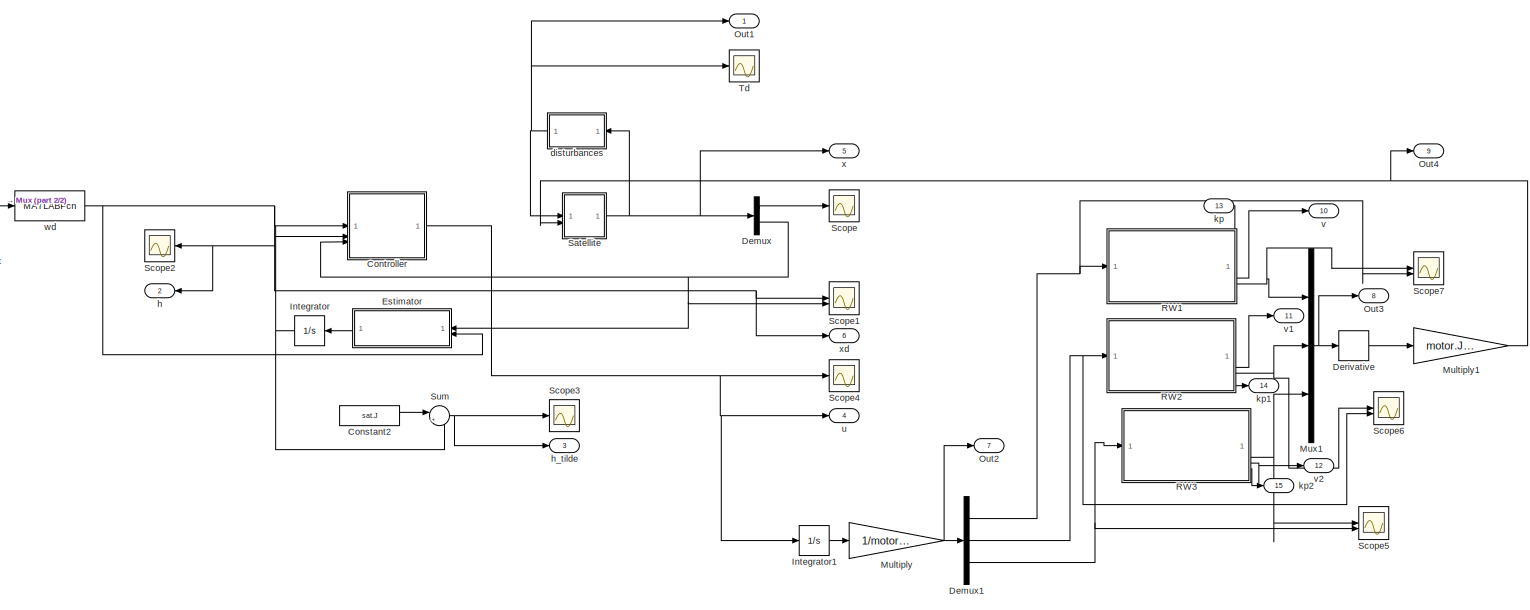
[diagram: root canvas - part 1/2, most of the canvas]
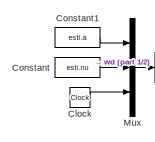
[diagram: root canvas - part 2/2, middle left region]
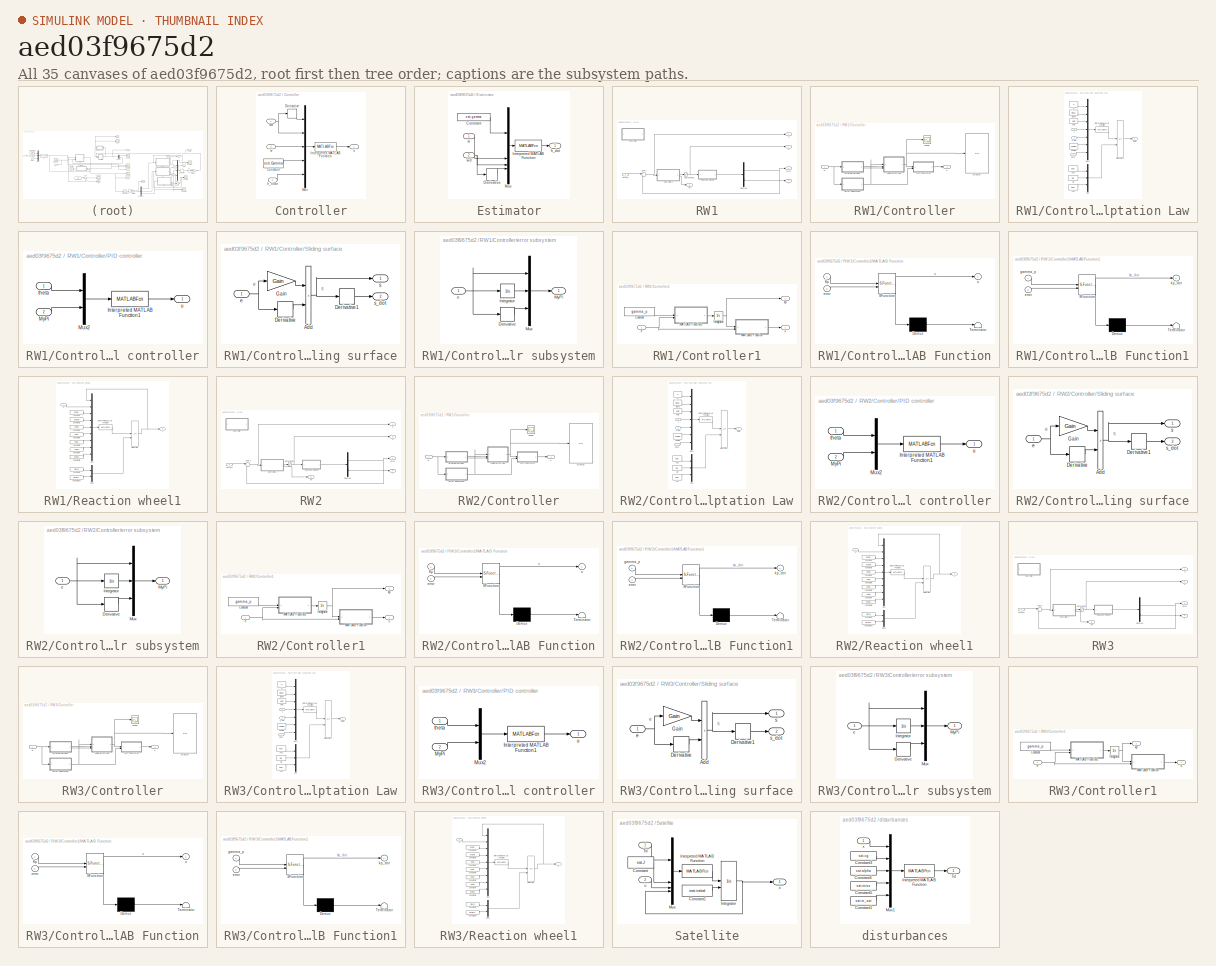
[diagram: thumbnail index - all 35 canvases of the model, root first then tree order]
MODEL slx_aed03f9675d2
KIND model
CONFIG AbsTol = auto
CONFIG EnableMultiTasking = off
CONFIG FixedStep = 1E-4
CONFIG MaxStep = auto
CONFIG MinStep = auto
CONFIG RelTol = 1e-3
CONFIG SampleTimeConstraint = Unconstrained
CONFIG SolverName = FixedStepAuto
CONFIG StartTime = 0.0
CONFIG StopTime = 1500
BLOCK [Clock] Clock
BLOCK [Constant] Constant
  Value = esti.nu
BLOCK [Constant] Constant1
  Value = esti.a
BLOCK [Constant] Constant2
  Value = sat.J
BLOCK [SubSystem] Controller
BLOCK [Constant] Controller/Constant
  Value = esti.Gamma
BLOCK [Derivative] Controller/Derivative
BLOCK [MATLABFcn] Controller/Interpreted MATLAB Function
  MATLABFcn = controller
BLOCK [Mux] Controller/Mux
  DisplayOption = bar
  Inputs = 5
BLOCK [Inport] Controller/h_tilde
  Port = 2
BLOCK [Outport] Controller/u
BLOCK [Inport] Controller/w
  Port = 3
BLOCK [Inport] Controller/wd
BLOCK [Demux] Demux
  Outputs = 2
BLOCK [Demux] Demux1
  Outputs = 3
BLOCK [Derivative] Derivative
BLOCK [SubSystem] Estimator
  NameLocation = top
BLOCK [Constant] Estimator/Constant
  Value = esti.gamma
  VectorParams1D = off
BLOCK [Derivative] Estimator/Derivative
BLOCK [MATLABFcn] Estimator/Interpreted MATLAB Function
  MATLABFcn = estimator
BLOCK [Mux] Estimator/Mux
  DisplayOption = bar
BLOCK [Outport] Estimator/h_dot
BLOCK [Inport] Estimator/w
BLOCK [Inport] Estimator/wd
  Port = 2
BLOCK [Integrator] Integrator
  NameLocation = top
BLOCK [Integrator] Integrator1
BLOCK [Gain] Multiply
  Gain = 1/motor.Jrw
BLOCK [Gain] Multiply1
  Gain = motor.Jrw
BLOCK [Mux] Mux
  DisplayOption = bar
  Inputs = 3
BLOCK [Mux] Mux1
  DisplayOption = bar
  Inputs = 3
BLOCK [Outport] Out1
BLOCK [Outport] Out2
  Port = 7
BLOCK [Outport] Out3
  Port = 8
BLOCK [Outport] Out4
  Port = 9
BLOCK [SubSystem] RW1
  PortSchema = {"entries":[{"content":{"sides":[{"content":{"connectorIds":["In1"]},"type":"ConnectorPlacement.EquallySpacedRectSide","uuid":"676f5149-fe3d-4701-b2d2-e4428c1af590"},{"content":{"connectorIds":["Out1","Out2","Out3","Out4"],"side":"RIGHT"},"type":"ConnectorPlacement.EquallySpacedRectSide","uuid":"0b9cb26b-9812-4b00-bfdf-ae8b5656d0ce"},{"content":{"connectorIds":["Out5"],"side":"TOP"},"type":"Connec...<+267ch>
BLOCK [SubSystem] RW1/Controller
  Commented = on
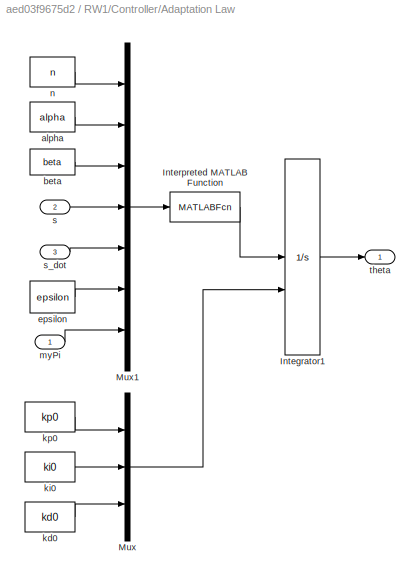
BLOCK [SubSystem] RW1/Controller/Adaptation Law
BLOCK [Integrator] RW1/Controller/Adaptation Law/Integrator1
  InitialCondition = [1.460477259865257e-04,6.548069875818259e-05,0]
  InitialConditionSource = external
BLOCK [MATLABFcn] RW1/Controller/Adaptation Law/Interpreted MATLAB Function
  MATLABFcn = adaptationLaw
BLOCK [Mux] RW1/Controller/Adaptation Law/Mux
  DisplayOption = bar
  Inputs = 3
BLOCK [Mux] RW1/Controller/Adaptation Law/Mux1
  DisplayOption = bar
  Inputs = 7
BLOCK [Constant] RW1/Controller/Adaptation Law/alpha
  Value = alpha
BLOCK [Constant] RW1/Controller/Adaptation Law/beta
  Value = beta
BLOCK [Constant] RW1/Controller/Adaptation Law/epsilon
  Value = epsilon
BLOCK [Constant] RW1/Controller/Adaptation Law/kd0
  Value = kd0
BLOCK [Constant] RW1/Controller/Adaptation Law/ki0
  Value = ki0
BLOCK [Constant] RW1/Controller/Adaptation Law/kp0
  Value = kp0
BLOCK [Inport] RW1/Controller/Adaptation Law/myPi
BLOCK [Constant] RW1/Controller/Adaptation Law/n
  Value = n
BLOCK [Inport] RW1/Controller/Adaptation Law/s
  Port = 2
BLOCK [Inport] RW1/Controller/Adaptation Law/s_dot
  Port = 3
BLOCK [Outport] RW1/Controller/Adaptation Law/theta
BLOCK [Display] RW1/Controller/Display
  Decimation = 1
BLOCK [SubSystem] RW1/Controller/PID controller
BLOCK [MATLABFcn] RW1/Controller/PID controller/Interpreted MATLAB Function1
  MATLABFcn = controlLaw
  OutputDimensions = 1
BLOCK [Mux] RW1/Controller/PID controller/Mux2
  DisplayOption = bar
  Inputs = 2
BLOCK [Inport] RW1/Controller/PID controller/MyPi
  Port = 2
BLOCK [Inport] RW1/Controller/PID controller/theta
BLOCK [Outport] RW1/Controller/PID controller/u
BLOCK [Scope] RW1/Controller/Scope
  Floating = off
  NumInputPorts = 1
  ScopeSpecificationString = Simulink.scopes.TimeScopeBlockCfg('CurrentConfiguration', extmgr.ConfigurationSet(extmgr.Configuration('Core','General UI',true),extmgr.Configuration('Core','Source UI',true),extmgr.Configuration('Sources','WiredSimulink',true,'DataLoggingVariableName','ScopeData1'),extmgr.Configuration('Visuals','Time Domain',true,'SerializedDisplays',{struct('MinYLimReal','-4827279135.47484','MaxYLimReal','38176...<+1593ch>  <repeated x3 — deduplicated; at blocks: Scope>
BLOCK [SubSystem] RW1/Controller/Sliding surface
BLOCK [Sum] RW1/Controller/Sliding surface/Add
  IconShape = rectangular
BLOCK [Derivative] RW1/Controller/Sliding surface/Derivative
BLOCK [Derivative] RW1/Controller/Sliding surface/Derivative1
BLOCK [Gain] RW1/Controller/Sliding surface/Gain
  Gain = Gain
BLOCK [Inport] RW1/Controller/Sliding surface/e
BLOCK [Outport] RW1/Controller/Sliding surface/s
BLOCK [Outport] RW1/Controller/Sliding surface/s_dot
  Port = 2
BLOCK [Inport] RW1/Controller/e
BLOCK [SubSystem] RW1/Controller/error subsystem
BLOCK [Derivative] RW1/Controller/error subsystem/Derivative
BLOCK [Integrator] RW1/Controller/error subsystem/Integrator
BLOCK [Mux] RW1/Controller/error subsystem/Mux
  DisplayOption = bar
  Inputs = 3
BLOCK [Outport] RW1/Controller/error subsystem/MyPi
BLOCK [Inport] RW1/Controller/error subsystem/e
BLOCK [Outport] RW1/Controller/u
BLOCK [SubSystem] RW1/Controller1
BLOCK [Constant] RW1/Controller1/Constant
  Value = gamma_p
BLOCK [Integrator] RW1/Controller1/Integrator
  InitialCondition = Kp_init
BLOCK [SubSystem] RW1/Controller1/MATLAB Function
  ErrorFcn = Stateflow.Translate.translate
  PermitHierarchicalResolution = ExplicitOnly
  SFBlockType = MATLAB Function
  TreatAsAtomicUnit = on
BLOCK [Demux] RW1/Controller1/MATLAB Function/ Demux 
  Outputs = 1
BLOCK [S-Function] RW1/Controller1/MATLAB Function/ SFunction 
  EnableBusSupport = on
  FunctionName = sf_sfun
  PortCounts = [2 2]
  SFcnIsStateOwnerBlock = off
  SFunctionDeploymentMode = off
  Tag = Stateflow S-Function 2
BLOCK [Terminator] RW1/Controller1/MATLAB Function/ Terminator 
BLOCK [Inport] RW1/Controller1/MATLAB Function/Kp
BLOCK [Inport] RW1/Controller1/MATLAB Function/error
  Port = 2
BLOCK [Outport] RW1/Controller1/MATLAB Function/u
BLOCK [SubSystem] RW1/Controller1/MATLAB Function1
  ErrorFcn = Stateflow.Translate.translate
  PermitHierarchicalResolution = ExplicitOnly
  SFBlockType = MATLAB Function
  TreatAsAtomicUnit = on
BLOCK [Demux] RW1/Controller1/MATLAB Function1/ Demux 
  Outputs = 1
BLOCK [S-Function] RW1/Controller1/MATLAB Function1/ SFunction 
  EnableBusSupport = on
  FunctionName = sf_sfun
  PortCounts = [2 2]
  SFcnIsStateOwnerBlock = off
  SFunctionDeploymentMode = off
  Tag = Stateflow S-Function 1
BLOCK [Terminator] RW1/Controller1/MATLAB Function1/ Terminator 
BLOCK [Inport] RW1/Controller1/MATLAB Function1/error
  Port = 2
BLOCK [Inport] RW1/Controller1/MATLAB Function1/gamma_p
BLOCK [Outport] RW1/Controller1/MATLAB Function1/kp_dot
BLOCK [Inport] RW1/Controller1/e
BLOCK [Outport] RW1/Controller1/kp
  Port = 2
BLOCK [Outport] RW1/Controller1/u
BLOCK [Demux] RW1/Demux1
  Outputs = 2
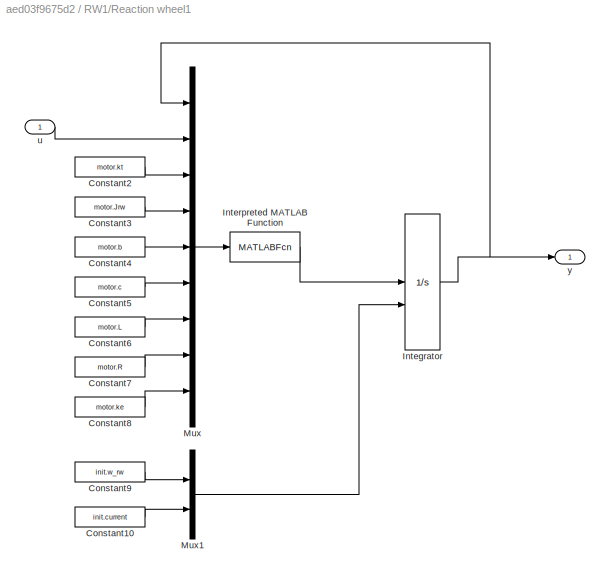
BLOCK [SubSystem] RW1/Reaction wheel1
BLOCK [Constant] RW1/Reaction wheel1/Constant10
  Value = init.current
BLOCK [Constant] RW1/Reaction wheel1/Constant2
  Value = motor.kt
BLOCK [Constant] RW1/Reaction wheel1/Constant3
  Value = motor.Jrw
BLOCK [Constant] RW1/Reaction wheel1/Constant4
  Value = motor.b
BLOCK [Constant] RW1/Reaction wheel1/Constant5
  Value = motor.c
BLOCK [Constant] RW1/Reaction wheel1/Constant6
  Value = motor.L
BLOCK [Constant] RW1/Reaction wheel1/Constant7
  Value = motor.R
BLOCK [Constant] RW1/Reaction wheel1/Constant8
  Value = motor.ke
BLOCK [Constant] RW1/Reaction wheel1/Constant9
  Value = init.w_rw
BLOCK [Integrator] RW1/Reaction wheel1/Integrator
  InitialConditionSource = external
BLOCK [MATLABFcn] RW1/Reaction wheel1/Interpreted MATLAB Function
  MATLABFcn = BrushelessModel_simu
  OutputDimensions = 2
BLOCK [Mux] RW1/Reaction wheel1/Mux
  DisplayOption = bar
  Inputs = 9
BLOCK [Mux] RW1/Reaction wheel1/Mux1
  DisplayOption = bar
  Inputs = 2
BLOCK [Inport] RW1/Reaction wheel1/u
BLOCK [Outport] RW1/Reaction wheel1/y
BLOCK [Saturate] RW1/Saturation1
  LowerLimit = -Inf
  UpperLimit = Inf
BLOCK [Sum] RW1/Sum1
  Inputs = |+-
BLOCK [Outport] RW1/Wrw
  Port = 3
BLOCK [Inport] RW1/Wrw_d
BLOCK [Outport] RW1/e
BLOCK [Outport] RW1/i
  Port = 4
BLOCK [Outport] RW1/kp
  Port = 5
BLOCK [Outport] RW1/v
  Port = 2
BLOCK [SubSystem] RW2
BLOCK [SubSystem] RW2/Controller
  Commented = on
BLOCK [SubSystem] RW2/Controller/Adaptation Law
BLOCK [Integrator] RW2/Controller/Adaptation Law/Integrator1
  InitialCondition = [1.460477259865257e-04,6.548069875818259e-05,0]
  InitialConditionSource = external
BLOCK [MATLABFcn] RW2/Controller/Adaptation Law/Interpreted MATLAB Function
  MATLABFcn = adaptationLaw
BLOCK [Mux] RW2/Controller/Adaptation Law/Mux
  DisplayOption = bar
  Inputs = 3
BLOCK [Mux] RW2/Controller/Adaptation Law/Mux1
  DisplayOption = bar
  Inputs = 7
BLOCK [Constant] RW2/Controller/Adaptation Law/alpha
  Value = alpha
BLOCK [Constant] RW2/Controller/Adaptation Law/beta
  Value = beta
BLOCK [Constant] RW2/Controller/Adaptation Law/epsilon
  Value = epsilon
BLOCK [Constant] RW2/Controller/Adaptation Law/kd0
  Value = kd0
BLOCK [Constant] RW2/Controller/Adaptation Law/ki0
  Value = ki0
BLOCK [Constant] RW2/Controller/Adaptation Law/kp0
  Value = kp0
BLOCK [Inport] RW2/Controller/Adaptation Law/myPi
BLOCK [Constant] RW2/Controller/Adaptation Law/n
  Value = n
BLOCK [Inport] RW2/Controller/Adaptation Law/s
  Port = 2
BLOCK [Inport] RW2/Controller/Adaptation Law/s_dot
  Port = 3
BLOCK [Outport] RW2/Controller/Adaptation Law/theta
BLOCK [Display] RW2/Controller/Display
  Decimation = 1
BLOCK [SubSystem] RW2/Controller/PID controller
BLOCK [MATLABFcn] RW2/Controller/PID controller/Interpreted MATLAB Function1
  MATLABFcn = controlLaw
  OutputDimensions = 1
BLOCK [Mux] RW2/Controller/PID controller/Mux2
  DisplayOption = bar
  Inputs = 2
BLOCK [Inport] RW2/Controller/PID controller/MyPi
  Port = 2
BLOCK [Inport] RW2/Controller/PID controller/theta
BLOCK [Outport] RW2/Controller/PID controller/u
BLOCK [Scope] RW2/Controller/Scope
  Floating = off
  NumInputPorts = 1
BLOCK [SubSystem] RW2/Controller/Sliding surface
BLOCK [Sum] RW2/Controller/Sliding surface/Add
  IconShape = rectangular
BLOCK [Derivative] RW2/Controller/Sliding surface/Derivative
BLOCK [Derivative] RW2/Controller/Sliding surface/Derivative1
BLOCK [Gain] RW2/Controller/Sliding surface/Gain
  Gain = Gain
BLOCK [Inport] RW2/Controller/Sliding surface/e
BLOCK [Outport] RW2/Controller/Sliding surface/s
BLOCK [Outport] RW2/Controller/Sliding surface/s_dot
  Port = 2
BLOCK [Inport] RW2/Controller/e
BLOCK [SubSystem] RW2/Controller/error subsystem
BLOCK [Derivative] RW2/Controller/error subsystem/Derivative
BLOCK [Integrator] RW2/Controller/error subsystem/Integrator
BLOCK [Mux] RW2/Controller/error subsystem/Mux
  DisplayOption = bar
  Inputs = 3
BLOCK [Outport] RW2/Controller/error subsystem/MyPi
BLOCK [Inport] RW2/Controller/error subsystem/e
BLOCK [Outport] RW2/Controller/u
BLOCK [SubSystem] RW2/Controller1
BLOCK [Constant] RW2/Controller1/Constant
  Value = gamma_p
BLOCK [Integrator] RW2/Controller1/Integrator
  InitialCondition = Kp_init
BLOCK [SubSystem] RW2/Controller1/MATLAB Function
  ErrorFcn = Stateflow.Translate.translate
  PermitHierarchicalResolution = ExplicitOnly
  SFBlockType = MATLAB Function
  TreatAsAtomicUnit = on
BLOCK [Demux] RW2/Controller1/MATLAB Function/ Demux 
  Outputs = 1
BLOCK [S-Function] RW2/Controller1/MATLAB Function/ SFunction 
  EnableBusSupport = on
  FunctionName = sf_sfun
  PortCounts = [2 2]
  SFcnIsStateOwnerBlock = off
  SFunctionDeploymentMode = off
  Tag = Stateflow S-Function 3
BLOCK [Terminator] RW2/Controller1/MATLAB Function/ Terminator 
BLOCK [Inport] RW2/Controller1/MATLAB Function/Kp
BLOCK [Inport] RW2/Controller1/MATLAB Function/error
  Port = 2
BLOCK [Outport] RW2/Controller1/MATLAB Function/u
BLOCK [SubSystem] RW2/Controller1/MATLAB Function1
  ErrorFcn = Stateflow.Translate.translate
  PermitHierarchicalResolution = ExplicitOnly
  SFBlockType = MATLAB Function
  TreatAsAtomicUnit = on
BLOCK [Demux] RW2/Controller1/MATLAB Function1/ Demux 
  Outputs = 1
BLOCK [S-Function] RW2/Controller1/MATLAB Function1/ SFunction 
  EnableBusSupport = on
  FunctionName = sf_sfun
  PortCounts = [2 2]
  SFcnIsStateOwnerBlock = off
  SFunctionDeploymentMode = off
  Tag = Stateflow S-Function 4
BLOCK [Terminator] RW2/Controller1/MATLAB Function1/ Terminator 
BLOCK [Inport] RW2/Controller1/MATLAB Function1/error
  Port = 2
BLOCK [Inport] RW2/Controller1/MATLAB Function1/gamma_p
BLOCK [Outport] RW2/Controller1/MATLAB Function1/kp_dot
BLOCK [Inport] RW2/Controller1/e
BLOCK [Outport] RW2/Controller1/kp
  Port = 2
BLOCK [Outport] RW2/Controller1/u
BLOCK [Demux] RW2/Demux1
  Outputs = 2
BLOCK [SubSystem] RW2/Reaction wheel1
BLOCK [Constant] RW2/Reaction wheel1/Constant10
  Value = init.current
BLOCK [Constant] RW2/Reaction wheel1/Constant2
  Value = motor.kt
BLOCK [Constant] RW2/Reaction wheel1/Constant3
  Value = motor.Jrw
BLOCK [Constant] RW2/Reaction wheel1/Constant4
  Value = motor.b
BLOCK [Constant] RW2/Reaction wheel1/Constant5
  Value = motor.c
BLOCK [Constant] RW2/Reaction wheel1/Constant6
  Value = motor.L
BLOCK [Constant] RW2/Reaction wheel1/Constant7
  Value = motor.R
BLOCK [Constant] RW2/Reaction wheel1/Constant8
  Value = motor.ke
BLOCK [Constant] RW2/Reaction wheel1/Constant9
  Value = init.w_rw
BLOCK [Integrator] RW2/Reaction wheel1/Integrator
  InitialConditionSource = external
BLOCK [MATLABFcn] RW2/Reaction wheel1/Interpreted MATLAB Function
  MATLABFcn = BrushelessModel_simu
  OutputDimensions = 2
BLOCK [Mux] RW2/Reaction wheel1/Mux
  DisplayOption = bar
  Inputs = 9
BLOCK [Mux] RW2/Reaction wheel1/Mux1
  DisplayOption = bar
  Inputs = 2
BLOCK [Inport] RW2/Reaction wheel1/u
BLOCK [Outport] RW2/Reaction wheel1/y
BLOCK [Saturate] RW2/Saturation1
  LowerLimit = -Inf
  UpperLimit = Inf
BLOCK [Sum] RW2/Sum1
  Inputs = |+-
BLOCK [Outport] RW2/Wrw
  Port = 3
BLOCK [Inport] RW2/Wrw_d
BLOCK [Outport] RW2/e
BLOCK [Outport] RW2/i
  Port = 4
BLOCK [Outport] RW2/kp
  Port = 5
BLOCK [Outport] RW2/v
  Port = 2
BLOCK [SubSystem] RW3
BLOCK [SubSystem] RW3/Controller
  Commented = on
BLOCK [SubSystem] RW3/Controller/Adaptation Law
BLOCK [Integrator] RW3/Controller/Adaptation Law/Integrator1
  InitialCondition = [1.460477259865257e-04,6.548069875818259e-05,0]
  InitialConditionSource = external
BLOCK [MATLABFcn] RW3/Controller/Adaptation Law/Interpreted MATLAB Function
  MATLABFcn = adaptationLaw
BLOCK [Mux] RW3/Controller/Adaptation Law/Mux
  DisplayOption = bar
  Inputs = 3
BLOCK [Mux] RW3/Controller/Adaptation Law/Mux1
  DisplayOption = bar
  Inputs = 7
BLOCK [Constant] RW3/Controller/Adaptation Law/alpha
  Value = alpha
BLOCK [Constant] RW3/Controller/Adaptation Law/beta
  Value = beta
BLOCK [Constant] RW3/Controller/Adaptation Law/epsilon
  Value = epsilon
BLOCK [Constant] RW3/Controller/Adaptation Law/kd0
  Value = kd0
BLOCK [Constant] RW3/Controller/Adaptation Law/ki0
  Value = ki0
BLOCK [Constant] RW3/Controller/Adaptation Law/kp0
  Value = kp0
BLOCK [Inport] RW3/Controller/Adaptation Law/myPi
BLOCK [Constant] RW3/Controller/Adaptation Law/n
  Value = n
BLOCK [Inport] RW3/Controller/Adaptation Law/s
  Port = 2
BLOCK [Inport] RW3/Controller/Adaptation Law/s_dot
  Port = 3
BLOCK [Outport] RW3/Controller/Adaptation Law/theta
BLOCK [Display] RW3/Controller/Display
  Decimation = 1
BLOCK [SubSystem] RW3/Controller/PID controller
BLOCK [MATLABFcn] RW3/Controller/PID controller/Interpreted MATLAB Function1
  MATLABFcn = controlLaw
  OutputDimensions = 1
BLOCK [Mux] RW3/Controller/PID controller/Mux2
  DisplayOption = bar
  Inputs = 2
BLOCK [Inport] RW3/Controller/PID controller/MyPi
  Port = 2
BLOCK [Inport] RW3/Controller/PID controller/theta
BLOCK [Outport] RW3/Controller/PID controller/u
BLOCK [Scope] RW3/Controller/Scope
  Floating = off
  NumInputPorts = 1
BLOCK [SubSystem] RW3/Controller/Sliding surface
BLOCK [Sum] RW3/Controller/Sliding surface/Add
  IconShape = rectangular
BLOCK [Derivative] RW3/Controller/Sliding surface/Derivative
BLOCK [Derivative] RW3/Controller/Sliding surface/Derivative1
BLOCK [Gain] RW3/Controller/Sliding surface/Gain
  Gain = Gain
BLOCK [Inport] RW3/Controller/Sliding surface/e
BLOCK [Outport] RW3/Controller/Sliding surface/s
BLOCK [Outport] RW3/Controller/Sliding surface/s_dot
  Port = 2
BLOCK [Inport] RW3/Controller/e
BLOCK [SubSystem] RW3/Controller/error subsystem
BLOCK [Derivative] RW3/Controller/error subsystem/Derivative
BLOCK [Integrator] RW3/Controller/error subsystem/Integrator
BLOCK [Mux] RW3/Controller/error subsystem/Mux
  DisplayOption = bar
  Inputs = 3
BLOCK [Outport] RW3/Controller/error subsystem/MyPi
BLOCK [Inport] RW3/Controller/error subsystem/e
BLOCK [Outport] RW3/Controller/u
BLOCK [SubSystem] RW3/Controller1
BLOCK [Constant] RW3/Controller1/Constant
  Value = gamma_p
BLOCK [Integrator] RW3/Controller1/Integrator
  InitialCondition = Kp_init
BLOCK [SubSystem] RW3/Controller1/MATLAB Function
  ErrorFcn = Stateflow.Translate.translate
  PermitHierarchicalResolution = ExplicitOnly
  SFBlockType = MATLAB Function
  TreatAsAtomicUnit = on
BLOCK [Demux] RW3/Controller1/MATLAB Function/ Demux 
  Outputs = 1
BLOCK [S-Function] RW3/Controller1/MATLAB Function/ SFunction 
  EnableBusSupport = on
  FunctionName = sf_sfun
  PortCounts = [2 2]
  SFcnIsStateOwnerBlock = off
  SFunctionDeploymentMode = off
  Tag = Stateflow S-Function 5
BLOCK [Terminator] RW3/Controller1/MATLAB Function/ Terminator 
BLOCK [Inport] RW3/Controller1/MATLAB Function/Kp
BLOCK [Inport] RW3/Controller1/MATLAB Function/error
  Port = 2
BLOCK [Outport] RW3/Controller1/MATLAB Function/u
BLOCK [SubSystem] RW3/Controller1/MATLAB Function1
  ErrorFcn = Stateflow.Translate.translate
  PermitHierarchicalResolution = ExplicitOnly
  SFBlockType = MATLAB Function
  TreatAsAtomicUnit = on
BLOCK [Demux] RW3/Controller1/MATLAB Function1/ Demux 
  Outputs = 1
BLOCK [S-Function] RW3/Controller1/MATLAB Function1/ SFunction 
  EnableBusSupport = on
  FunctionName = sf_sfun
  PortCounts = [2 2]
  SFcnIsStateOwnerBlock = off
  SFunctionDeploymentMode = off
  Tag = Stateflow S-Function 6
BLOCK [Terminator] RW3/Controller1/MATLAB Function1/ Terminator 
BLOCK [Inport] RW3/Controller1/MATLAB Function1/error
  Port = 2
BLOCK [Inport] RW3/Controller1/MATLAB Function1/gamma_p
BLOCK [Outport] RW3/Controller1/MATLAB Function1/kp_dot
BLOCK [Inport] RW3/Controller1/e
BLOCK [Outport] RW3/Controller1/kp
  Port = 2
BLOCK [Outport] RW3/Controller1/u
BLOCK [Demux] RW3/Demux1
  Outputs = 2
BLOCK [SubSystem] RW3/Reaction wheel1
BLOCK [Constant] RW3/Reaction wheel1/Constant10
  Value = init.current
BLOCK [Constant] RW3/Reaction wheel1/Constant2
  Value = motor.kt
BLOCK [Constant] RW3/Reaction wheel1/Constant3
  Value = motor.Jrw
BLOCK [Constant] RW3/Reaction wheel1/Constant4
  Value = motor.b
BLOCK [Constant] RW3/Reaction wheel1/Constant5
  Value = motor.c
BLOCK [Constant] RW3/Reaction wheel1/Constant6
  Value = motor.L
BLOCK [Constant] RW3/Reaction wheel1/Constant7
  Value = motor.R
BLOCK [Constant] RW3/Reaction wheel1/Constant8
  Value = motor.ke
BLOCK [Constant] RW3/Reaction wheel1/Constant9
  Value = init.w_rw
BLOCK [Integrator] RW3/Reaction wheel1/Integrator
  InitialConditionSource = external
BLOCK [MATLABFcn] RW3/Reaction wheel1/Interpreted MATLAB Function
  MATLABFcn = BrushelessModel_simu
  OutputDimensions = 2
BLOCK [Mux] RW3/Reaction wheel1/Mux
  DisplayOption = bar
  Inputs = 9
BLOCK [Mux] RW3/Reaction wheel1/Mux1
  DisplayOption = bar
  Inputs = 2
BLOCK [Inport] RW3/Reaction wheel1/u
BLOCK [Outport] RW3/Reaction wheel1/y
BLOCK [Saturate] RW3/Saturation1
  LowerLimit = -Inf
  UpperLimit = Inf
BLOCK [Sum] RW3/Sum1
  Inputs = |+-
BLOCK [Outport] RW3/Wrw
  Port = 2
BLOCK [Inport] RW3/Wrw_d
BLOCK [Outport] RW3/e
BLOCK [Outport] RW3/i
  Port = 4
BLOCK [Outport] RW3/kp
  Port = 5
BLOCK [Outport] RW3/v
  Port = 3
BLOCK [SubSystem] Satellite
BLOCK [Constant] Satellite/Constant
  Value = sat.J
BLOCK [Constant] Satellite/Constant1
  Value = esti.initial
BLOCK [Integrator] Satellite/Integrator
  InitialConditionSource = external
BLOCK [MATLABFcn] Satellite/Interpreted MATLAB Function
  MATLABFcn = cubeSatEquationState
BLOCK [Mux] Satellite/Mux
  DisplayOption = bar
BLOCK [Inport] Satellite/Td
BLOCK [Inport] Satellite/u
  Port = 2
BLOCK [Outport] Satellite/x
BLOCK [Scope] Scope
  Floating = off
  NumInputPorts = 1
  ScopeSpecificationString = Simulink.scopes.TimeScopeBlockCfg('CurrentConfiguration', extmgr.ConfigurationSet(extmgr.Configuration('Core','General UI',true),extmgr.Configuration('Core','Source UI',true),extmgr.Configuration('Sources','WiredSimulink',true,'DataLoggingVariableName','ScopeData1'),extmgr.Configuration('Visuals','Time Domain',true,'SerializedDisplays',{struct('MinYLimReal','-1.24894','MaxYLimReal','1.24988','YLab...<+1541ch>
BLOCK [Scope] Scope1
  Floating = off
  NumInputPorts = 2
  ScopeSpecificationString = Simulink.scopes.TimeScopeBlockCfg('CurrentConfiguration', extmgr.ConfigurationSet(extmgr.Configuration('Core','General UI',true),extmgr.Configuration('Core','Source UI',true),extmgr.Configuration('Sources','WiredSimulink',true,'DataLoggingVariableName','ScopeData2'),extmgr.Configuration('Visuals','Time Domain',true,'SerializedDisplays',{struct('MinYLimReal','-1.4625','MaxYLimReal','1.58876','YLabe...<+1712ch>
BLOCK [Scope] Scope2
  Floating = off
  NameLocation = top
  NumInputPorts = 1
  ScopeSpecificationString = Simulink.scopes.TimeScopeBlockCfg('CurrentConfiguration', extmgr.ConfigurationSet(extmgr.Configuration('Core','General UI',true),extmgr.Configuration('Core','Source UI',true),extmgr.Configuration('Sources','WiredSimulink',true,'DataLoggingVariableName','ScopeData3'),extmgr.Configuration('Visuals','Time Domain',true,'SerializedDisplays',{struct('MinYLimReal','-0.17541','MaxYLimReal','0.4092','YLabe...<+1739ch>
BLOCK [Scope] Scope3
  Floating = off
  NumInputPorts = 1
  ScopeSpecificationString = Simulink.scopes.TimeScopeBlockCfg('CurrentConfiguration', extmgr.ConfigurationSet(extmgr.Configuration('Core','General UI',true),extmgr.Configuration('Core','Source UI',true),extmgr.Configuration('Sources','WiredSimulink',true,'DataLoggingVariableName','ScopeData4'),extmgr.Configuration('Visuals','Time Domain',true,'SerializedDisplays',{struct('MinYLimReal','-0.00363','MaxYLimReal','0.00485','YLab...<+1523ch>
BLOCK [Scope] Scope4
  Floating = off
  NumInputPorts = 1
  ScopeSpecificationString = Simulink.scopes.TimeScopeBlockCfg('CurrentConfiguration', extmgr.ConfigurationSet(extmgr.Configuration('Core','General UI',true),extmgr.Configuration('Core','Source UI',true),extmgr.Configuration('Sources','WiredSimulink',true,'DataLoggingVariableName','ScopeData5'),extmgr.Configuration('Visuals','Time Domain',true,'SerializedDisplays',{struct('MinYLimReal','-0.05407','MaxYLimReal','0.04409','YLab...<+1563ch>
BLOCK [Scope] Scope5
  Floating = off
  NumInputPorts = 2
  ScopeSpecificationString = Simulink.scopes.TimeScopeBlockCfg('CurrentConfiguration', extmgr.ConfigurationSet(extmgr.Configuration('Core','General UI',true),extmgr.Configuration('Core','Source UI',true),extmgr.Configuration('Sources','WiredSimulink',true,'DataLoggingVariableName','ScopeData1'),extmgr.Configuration('Visuals','Time Domain',true,'SerializedDisplays',{struct('MinYLimReal','-91.66103','MaxYLimReal','1041.20749','...<+1535ch>
BLOCK [Scope] Scope6
  Floating = off
  NumInputPorts = 2
  ScopeSpecificationString = Simulink.scopes.TimeScopeBlockCfg('CurrentConfiguration', extmgr.ConfigurationSet(extmgr.Configuration('Core','General UI',true),extmgr.Configuration('Core','Source UI',true),extmgr.Configuration('Sources','WiredSimulink',true,'DataLoggingVariableName','ScopeData1'),extmgr.Configuration('Visuals','Time Domain',true,'SerializedDisplays',{struct('MinYLimReal','-833.4152','MaxYLimReal','-4.40145','YL...<+1529ch>
BLOCK [Scope] Scope7
  Floating = off
  NumInputPorts = 2
  ScopeSpecificationString = Simulink.scopes.TimeScopeBlockCfg('CurrentConfiguration', extmgr.ConfigurationSet(extmgr.Configuration('Core','General UI',true),extmgr.Configuration('Core','Source UI',true),extmgr.Configuration('Sources','WiredSimulink',true,'DataLoggingVariableName','ScopeData2'),extmgr.Configuration('Visuals','Time Domain',true,'SerializedDisplays',{struct('MinYLimReal','-163.74054','MaxYLimReal','814.87574','...<+1536ch>
BLOCK [Sum] Sum
  Inputs = |+-
BLOCK [Scope] Td
  Floating = off
  NumInputPorts = 1
  ScopeSpecificationString = Simulink.scopes.TimeScopeBlockCfg('CurrentConfiguration', extmgr.ConfigurationSet(extmgr.Configuration('Core','General UI',true),extmgr.Configuration('Core','Source UI',true),extmgr.Configuration('Sources','WiredSimulink',true,'DataLoggingVariableName','ScopeData6'),extmgr.Configuration('Visuals','Time Domain',true,'SerializedDisplays',{struct('MinYLimReal','-0.000051','MaxYLimReal','0.000048','YL...<+1552ch>
BLOCK [SubSystem] disturbances
  NameLocation = top
BLOCK [Constant] disturbances/Constant1
  Value = sat.m_sat
BLOCK [Constant] disturbances/Constant3
  Value = sat.cg
BLOCK [Constant] disturbances/Constant4
  Value = sat.alpha
BLOCK [Constant] disturbances/Constant5
  Value = sat.miss
BLOCK [MATLABFcn] disturbances/Interpreted MATLAB Function
  MATLABFcn = disturbances
BLOCK [Mux] disturbances/Mux1
  DisplayOption = bar
  Inputs = 5
BLOCK [Outport] disturbances/Td
BLOCK [Inport] disturbances/x
BLOCK [Outport] h
  NameLocation = top
  Port = 2
BLOCK [Outport] h_tilde
  Port = 3
BLOCK [Outport] kp
  Port = 13
BLOCK [Outport] kp1
  Port = 14
BLOCK [Outport] kp2
  Port = 15
BLOCK [Outport] u
  Port = 4
BLOCK [Outport] v
  Port = 10
BLOCK [Outport] v1
  Port = 11
BLOCK [Outport] v2
  Port = 12
BLOCK [MATLABFcn] wd
  MATLABFcn = compute_omega_d_T
BLOCK [Outport] x
  Port = 5
BLOCK [Outport] xd
  Port = 6
ANNOTATION RW1/Controller/Sliding surface: e
ANNOTATION RW1/Controller/Sliding surface: s
ANNOTATION RW2/Controller/Sliding surface: e
ANNOTATION RW2/Controller/Sliding surface: s
ANNOTATION RW3/Controller/Sliding surface: e
ANNOTATION RW3/Controller/Sliding surface: s
LINE Clock:1 -> Mux:3
LINE Constant1:1 -> Mux:1
LINE Constant2:1 -> Sum:1
LINE Constant:1 -> Mux:2
LINE Controller/Constant:1 -> Controller/Mux:4
LINE Controller/Derivative:1 -> Controller/Mux:1
LINE Controller/Interpreted MATLAB Function:1 -> Controller/u:1
LINE Controller/Mux:1 -> Controller/Interpreted MATLAB Function:1
LINE Controller/h_tilde:1 -> Controller/Mux:5
LINE Controller/w:1 -> Controller/Mux:3
NET Controller/wd:1 -> Controller/Derivative:1, Controller/Mux:2
NET Controller:1 -> Integrator1:1, Scope4:1, u:1
NET Demux1:1 -> RW1:1, Scope7:2
NET Demux1:2 -> RW2:1, Scope6:2
NET Demux1:3 -> RW3:1, Scope5:2
LINE Demux:1 -> Scope:1
NET Demux:2 -> Controller:3, Estimator:1, Scope1:2
LINE Derivative:1 -> Multiply1:1
LINE Estimator/Constant:1 -> Estimator/Mux:1
LINE Estimator/Derivative:1 -> Estimator/Mux:4
LINE Estimator/Interpreted MATLAB Function:1 -> Estimator/h_dot:1
LINE Estimator/Mux:1 -> Estimator/Interpreted MATLAB Function:1
LINE Estimator/w:1 -> Estimator/Mux:2
NET Estimator/wd:1 -> Estimator/Derivative:1, Estimator/Mux:3
LINE Estimator:1 -> Integrator:1
LINE Integrator1:1 -> Multiply:1
NET Integrator:1 -> Controller:2, Scope2:1, Sum:2, h:1
NET Multiply1:1 -> Out4:1, Satellite:2
NET Multiply:1 -> Demux1:1, Out2:1
NET Mux1:1 -> Derivative:1, Out3:1
LINE Mux:1 -> wd:1
LINE RW1/Controller/Adaptation Law/Integrator1:1 -> RW1/Controller/Adaptation Law/theta:1
LINE RW1/Controller/Adaptation Law/Interpreted MATLAB Function:1 -> RW1/Controller/Adaptation Law/Integrator1:1
LINE RW1/Controller/Adaptation Law/Mux1:1 -> RW1/Controller/Adaptation Law/Interpreted MATLAB Function:1
LINE RW1/Controller/Adaptation Law/Mux:1 -> RW1/Controller/Adaptation Law/Integrator1:2
LINE RW1/Controller/Adaptation Law/alpha:1 -> RW1/Controller/Adaptation Law/Mux1:2
LINE RW1/Controller/Adaptation Law/beta:1 -> RW1/Controller/Adaptation Law/Mux1:3
LINE RW1/Controller/Adaptation Law/epsilon:1 -> RW1/Controller/Adaptation Law/Mux1:6
LINE RW1/Controller/Adaptation Law/kd0:1 -> RW1/Controller/Adaptation Law/Mux:3
LINE RW1/Controller/Adaptation Law/ki0:1 -> RW1/Controller/Adaptation Law/Mux:2
LINE RW1/Controller/Adaptation Law/kp0:1 -> RW1/Controller/Adaptation Law/Mux:1
LINE RW1/Controller/Adaptation Law/myPi:1 -> RW1/Controller/Adaptation Law/Mux1:7
LINE RW1/Controller/Adaptation Law/n:1 -> RW1/Controller/Adaptation Law/Mux1:1
LINE RW1/Controller/Adaptation Law/s:1 -> RW1/Controller/Adaptation Law/Mux1:4
LINE RW1/Controller/Adaptation Law/s_dot:1 -> RW1/Controller/Adaptation Law/Mux1:5
NET RW1/Controller/Adaptation Law:1 -> RW1/Controller/Display:1, RW1/Controller/PID controller:1, RW1/Controller/Scope:1
LINE RW1/Controller/PID controller/Interpreted MATLAB Function1:1 -> RW1/Controller/PID controller/u:1
LINE RW1/Controller/PID controller/Mux2:1 -> RW1/Controller/PID controller/Interpreted MATLAB Function1:1
LINE RW1/Controller/PID controller/MyPi:1 -> RW1/Controller/PID controller/Mux2:2
LINE RW1/Controller/PID controller/theta:1 -> RW1/Controller/PID controller/Mux2:1
LINE RW1/Controller/PID controller:1 -> RW1/Controller/u:1
NET RW1/Controller/Sliding surface/Add:1 -> RW1/Controller/Sliding surface/Derivative1:1, RW1/Controller/Sliding surface/s:1
LINE RW1/Controller/Sliding surface/Derivative1:1 -> RW1/Controller/Sliding surface/s_dot:1
LINE RW1/Controller/Sliding surface/Derivative:1 -> RW1/Controller/Sliding surface/Add:2
LINE RW1/Controller/Sliding surface/Gain:1 -> RW1/Controller/Sliding surface/Add:1
NET RW1/Controller/Sliding surface/e:1 -> RW1/Controller/Sliding surface/Derivative:1, RW1/Controller/Sliding surface/Gain:1
LINE RW1/Controller/Sliding surface:1 -> RW1/Controller/Adaptation Law:2
LINE RW1/Controller/Sliding surface:2 -> RW1/Controller/Adaptation Law:3
NET RW1/Controller/e:1 -> RW1/Controller/Sliding surface:1, RW1/Controller/error subsystem:1
LINE RW1/Controller/error subsystem/Derivative:1 -> RW1/Controller/error subsystem/Mux:3
LINE RW1/Controller/error subsystem/Integrator:1 -> RW1/Controller/error subsystem/Mux:2
LINE RW1/Controller/error subsystem/Mux:1 -> RW1/Controller/error subsystem/MyPi:1
NET RW1/Controller/error subsystem/e:1 -> RW1/Controller/error subsystem/Derivative:1, RW1/Controller/error subsystem/Integrator:1, RW1/Controller/error subsystem/Mux:1
NET RW1/Controller/error subsystem:1 -> RW1/Controller/Adaptation Law:1, RW1/Controller/PID controller:2
LINE RW1/Controller1/Constant:1 -> RW1/Controller1/MATLAB Function1:1
NET RW1/Controller1/Integrator:1 -> RW1/Controller1/MATLAB Function:1, RW1/Controller1/kp:1
LINE RW1/Controller1/MATLAB Function1:1 -> RW1/Controller1/Integrator:1
LINE RW1/Controller1/MATLAB Function:1 -> RW1/Controller1/u:1
NET RW1/Controller1/e:1 -> RW1/Controller1/MATLAB Function1:2, RW1/Controller1/MATLAB Function:2
LINE RW1/Controller1:1 -> RW1/Saturation1:1
LINE RW1/Controller1:2 -> RW1/kp:1
NET RW1/Demux1:1 -> RW1/Sum1:2, RW1/Wrw:1
LINE RW1/Demux1:2 -> RW1/i:1
LINE RW1/Reaction wheel1/Constant10:1 -> RW1/Reaction wheel1/Mux1:2
LINE RW1/Reaction wheel1/Constant2:1 -> RW1/Reaction wheel1/Mux:3
LINE RW1/Reaction wheel1/Constant3:1 -> RW1/Reaction wheel1/Mux:4
LINE RW1/Reaction wheel1/Constant4:1 -> RW1/Reaction wheel1/Mux:5
LINE RW1/Reaction wheel1/Constant5:1 -> RW1/Reaction wheel1/Mux:6
LINE RW1/Reaction wheel1/Constant6:1 -> RW1/Reaction wheel1/Mux:7
LINE RW1/Reaction wheel1/Constant7:1 -> RW1/Reaction wheel1/Mux:8
LINE RW1/Reaction wheel1/Constant8:1 -> RW1/Reaction wheel1/Mux:9
LINE RW1/Reaction wheel1/Constant9:1 -> RW1/Reaction wheel1/Mux1:1
NET RW1/Reaction wheel1/Integrator:1 -> RW1/Reaction wheel1/Mux:1, RW1/Reaction wheel1/y:1
LINE RW1/Reaction wheel1/Interpreted MATLAB Function:1 -> RW1/Reaction wheel1/Integrator:1
LINE RW1/Reaction wheel1/Mux1:1 -> RW1/Reaction wheel1/Integrator:2
LINE RW1/Reaction wheel1/Mux:1 -> RW1/Reaction wheel1/Interpreted MATLAB Function:1
LINE RW1/Reaction wheel1/u:1 -> RW1/Reaction wheel1/Mux:2
LINE RW1/Reaction wheel1:1 -> RW1/Demux1:1
NET RW1/Saturation1:1 -> RW1/Reaction wheel1:1, RW1/v:1
NET RW1/Sum1:1 -> RW1/Controller1:1, RW1/e:1
LINE RW1/Wrw_d:1 -> RW1/Sum1:1
LINE RW1:2 -> v:1
NET RW1:3 -> Mux1:1, Scope7:1
LINE RW1:5 -> kp:1
LINE RW2/Controller/Adaptation Law/Integrator1:1 -> RW2/Controller/Adaptation Law/theta:1
LINE RW2/Controller/Adaptation Law/Interpreted MATLAB Function:1 -> RW2/Controller/Adaptation Law/Integrator1:1
LINE RW2/Controller/Adaptation Law/Mux1:1 -> RW2/Controller/Adaptation Law/Interpreted MATLAB Function:1
LINE RW2/Controller/Adaptation Law/Mux:1 -> RW2/Controller/Adaptation Law/Integrator1:2
LINE RW2/Controller/Adaptation Law/alpha:1 -> RW2/Controller/Adaptation Law/Mux1:2
LINE RW2/Controller/Adaptation Law/beta:1 -> RW2/Controller/Adaptation Law/Mux1:3
LINE RW2/Controller/Adaptation Law/epsilon:1 -> RW2/Controller/Adaptation Law/Mux1:6
LINE RW2/Controller/Adaptation Law/kd0:1 -> RW2/Controller/Adaptation Law/Mux:3
LINE RW2/Controller/Adaptation Law/ki0:1 -> RW2/Controller/Adaptation Law/Mux:2
LINE RW2/Controller/Adaptation Law/kp0:1 -> RW2/Controller/Adaptation Law/Mux:1
LINE RW2/Controller/Adaptation Law/myPi:1 -> RW2/Controller/Adaptation Law/Mux1:7
LINE RW2/Controller/Adaptation Law/n:1 -> RW2/Controller/Adaptation Law/Mux1:1
LINE RW2/Controller/Adaptation Law/s:1 -> RW2/Controller/Adaptation Law/Mux1:4
LINE RW2/Controller/Adaptation Law/s_dot:1 -> RW2/Controller/Adaptation Law/Mux1:5
NET RW2/Controller/Adaptation Law:1 -> RW2/Controller/Display:1, RW2/Controller/PID controller:1, RW2/Controller/Scope:1
LINE RW2/Controller/PID controller/Interpreted MATLAB Function1:1 -> RW2/Controller/PID controller/u:1
LINE RW2/Controller/PID controller/Mux2:1 -> RW2/Controller/PID controller/Interpreted MATLAB Function1:1
LINE RW2/Controller/PID controller/MyPi:1 -> RW2/Controller/PID controller/Mux2:2
LINE RW2/Controller/PID controller/theta:1 -> RW2/Controller/PID controller/Mux2:1
LINE RW2/Controller/PID controller:1 -> RW2/Controller/u:1
NET RW2/Controller/Sliding surface/Add:1 -> RW2/Controller/Sliding surface/Derivative1:1, RW2/Controller/Sliding surface/s:1
LINE RW2/Controller/Sliding surface/Derivative1:1 -> RW2/Controller/Sliding surface/s_dot:1
LINE RW2/Controller/Sliding surface/Derivative:1 -> RW2/Controller/Sliding surface/Add:2
LINE RW2/Controller/Sliding surface/Gain:1 -> RW2/Controller/Sliding surface/Add:1
NET RW2/Controller/Sliding surface/e:1 -> RW2/Controller/Sliding surface/Derivative:1, RW2/Controller/Sliding surface/Gain:1
LINE RW2/Controller/Sliding surface:1 -> RW2/Controller/Adaptation Law:2
LINE RW2/Controller/Sliding surface:2 -> RW2/Controller/Adaptation Law:3
NET RW2/Controller/e:1 -> RW2/Controller/Sliding surface:1, RW2/Controller/error subsystem:1
LINE RW2/Controller/error subsystem/Derivative:1 -> RW2/Controller/error subsystem/Mux:3
LINE RW2/Controller/error subsystem/Integrator:1 -> RW2/Controller/error subsystem/Mux:2
LINE RW2/Controller/error subsystem/Mux:1 -> RW2/Controller/error subsystem/MyPi:1
NET RW2/Controller/error subsystem/e:1 -> RW2/Controller/error subsystem/Derivative:1, RW2/Controller/error subsystem/Integrator:1, RW2/Controller/error subsystem/Mux:1
NET RW2/Controller/error subsystem:1 -> RW2/Controller/Adaptation Law:1, RW2/Controller/PID controller:2
LINE RW2/Controller1/Constant:1 -> RW2/Controller1/MATLAB Function1:1
NET RW2/Controller1/Integrator:1 -> RW2/Controller1/MATLAB Function:1, RW2/Controller1/kp:1
LINE RW2/Controller1/MATLAB Function1:1 -> RW2/Controller1/Integrator:1
LINE RW2/Controller1/MATLAB Function:1 -> RW2/Controller1/u:1
NET RW2/Controller1/e:1 -> RW2/Controller1/MATLAB Function1:2, RW2/Controller1/MATLAB Function:2
LINE RW2/Controller1:1 -> RW2/Saturation1:1
LINE RW2/Controller1:2 -> RW2/kp:1
NET RW2/Demux1:1 -> RW2/Sum1:2, RW2/Wrw:1
LINE RW2/Demux1:2 -> RW2/i:1
LINE RW2/Reaction wheel1/Constant10:1 -> RW2/Reaction wheel1/Mux1:2
LINE RW2/Reaction wheel1/Constant2:1 -> RW2/Reaction wheel1/Mux:3
LINE RW2/Reaction wheel1/Constant3:1 -> RW2/Reaction wheel1/Mux:4
LINE RW2/Reaction wheel1/Constant4:1 -> RW2/Reaction wheel1/Mux:5
LINE RW2/Reaction wheel1/Constant5:1 -> RW2/Reaction wheel1/Mux:6
LINE RW2/Reaction wheel1/Constant6:1 -> RW2/Reaction wheel1/Mux:7
LINE RW2/Reaction wheel1/Constant7:1 -> RW2/Reaction wheel1/Mux:8
LINE RW2/Reaction wheel1/Constant8:1 -> RW2/Reaction wheel1/Mux:9
LINE RW2/Reaction wheel1/Constant9:1 -> RW2/Reaction wheel1/Mux1:1
NET RW2/Reaction wheel1/Integrator:1 -> RW2/Reaction wheel1/Mux:1, RW2/Reaction wheel1/y:1
LINE RW2/Reaction wheel1/Interpreted MATLAB Function:1 -> RW2/Reaction wheel1/Integrator:1
LINE RW2/Reaction wheel1/Mux1:1 -> RW2/Reaction wheel1/Integrator:2
LINE RW2/Reaction wheel1/Mux:1 -> RW2/Reaction wheel1/Interpreted MATLAB Function:1
LINE RW2/Reaction wheel1/u:1 -> RW2/Reaction wheel1/Mux:2
LINE RW2/Reaction wheel1:1 -> RW2/Demux1:1
NET RW2/Saturation1:1 -> RW2/Reaction wheel1:1, RW2/v:1
NET RW2/Sum1:1 -> RW2/Controller1:1, RW2/e:1
LINE RW2/Wrw_d:1 -> RW2/Sum1:1
LINE RW2:2 -> v1:1
NET RW2:3 -> Mux1:2, Scope6:1
LINE RW2:5 -> kp1:1
LINE RW3/Controller/Adaptation Law/Integrator1:1 -> RW3/Controller/Adaptation Law/theta:1
LINE RW3/Controller/Adaptation Law/Interpreted MATLAB Function:1 -> RW3/Controller/Adaptation Law/Integrator1:1
LINE RW3/Controller/Adaptation Law/Mux1:1 -> RW3/Controller/Adaptation Law/Interpreted MATLAB Function:1
LINE RW3/Controller/Adaptation Law/Mux:1 -> RW3/Controller/Adaptation Law/Integrator1:2
LINE RW3/Controller/Adaptation Law/alpha:1 -> RW3/Controller/Adaptation Law/Mux1:2
LINE RW3/Controller/Adaptation Law/beta:1 -> RW3/Controller/Adaptation Law/Mux1:3
LINE RW3/Controller/Adaptation Law/epsilon:1 -> RW3/Controller/Adaptation Law/Mux1:6
LINE RW3/Controller/Adaptation Law/kd0:1 -> RW3/Controller/Adaptation Law/Mux:3
LINE RW3/Controller/Adaptation Law/ki0:1 -> RW3/Controller/Adaptation Law/Mux:2
LINE RW3/Controller/Adaptation Law/kp0:1 -> RW3/Controller/Adaptation Law/Mux:1
LINE RW3/Controller/Adaptation Law/myPi:1 -> RW3/Controller/Adaptation Law/Mux1:7
LINE RW3/Controller/Adaptation Law/n:1 -> RW3/Controller/Adaptation Law/Mux1:1
LINE RW3/Controller/Adaptation Law/s:1 -> RW3/Controller/Adaptation Law/Mux1:4
LINE RW3/Controller/Adaptation Law/s_dot:1 -> RW3/Controller/Adaptation Law/Mux1:5
NET RW3/Controller/Adaptation Law:1 -> RW3/Controller/Display:1, RW3/Controller/PID controller:1, RW3/Controller/Scope:1
LINE RW3/Controller/PID controller/Interpreted MATLAB Function1:1 -> RW3/Controller/PID controller/u:1
LINE RW3/Controller/PID controller/Mux2:1 -> RW3/Controller/PID controller/Interpreted MATLAB Function1:1
LINE RW3/Controller/PID controller/MyPi:1 -> RW3/Controller/PID controller/Mux2:2
LINE RW3/Controller/PID controller/theta:1 -> RW3/Controller/PID controller/Mux2:1
LINE RW3/Controller/PID controller:1 -> RW3/Controller/u:1
NET RW3/Controller/Sliding surface/Add:1 -> RW3/Controller/Sliding surface/Derivative1:1, RW3/Controller/Sliding surface/s:1
LINE RW3/Controller/Sliding surface/Derivative1:1 -> RW3/Controller/Sliding surface/s_dot:1
LINE RW3/Controller/Sliding surface/Derivative:1 -> RW3/Controller/Sliding surface/Add:2
LINE RW3/Controller/Sliding surface/Gain:1 -> RW3/Controller/Sliding surface/Add:1
NET RW3/Controller/Sliding surface/e:1 -> RW3/Controller/Sliding surface/Derivative:1, RW3/Controller/Sliding surface/Gain:1
LINE RW3/Controller/Sliding surface:1 -> RW3/Controller/Adaptation Law:2
LINE RW3/Controller/Sliding surface:2 -> RW3/Controller/Adaptation Law:3
NET RW3/Controller/e:1 -> RW3/Controller/Sliding surface:1, RW3/Controller/error subsystem:1
LINE RW3/Controller/error subsystem/Derivative:1 -> RW3/Controller/error subsystem/Mux:3
LINE RW3/Controller/error subsystem/Integrator:1 -> RW3/Controller/error subsystem/Mux:2
LINE RW3/Controller/error subsystem/Mux:1 -> RW3/Controller/error subsystem/MyPi:1
NET RW3/Controller/error subsystem/e:1 -> RW3/Controller/error subsystem/Derivative:1, RW3/Controller/error subsystem/Integrator:1, RW3/Controller/error subsystem/Mux:1
NET RW3/Controller/error subsystem:1 -> RW3/Controller/Adaptation Law:1, RW3/Controller/PID controller:2
LINE RW3/Controller1/Constant:1 -> RW3/Controller1/MATLAB Function1:1
NET RW3/Controller1/Integrator:1 -> RW3/Controller1/MATLAB Function:1, RW3/Controller1/kp:1
LINE RW3/Controller1/MATLAB Function1:1 -> RW3/Controller1/Integrator:1
LINE RW3/Controller1/MATLAB Function:1 -> RW3/Controller1/u:1
NET RW3/Controller1/e:1 -> RW3/Controller1/MATLAB Function1:2, RW3/Controller1/MATLAB Function:2
LINE RW3/Controller1:1 -> RW3/Saturation1:1
LINE RW3/Controller1:2 -> RW3/kp:1
NET RW3/Demux1:1 -> RW3/Sum1:2, RW3/Wrw:1
LINE RW3/Demux1:2 -> RW3/i:1
LINE RW3/Reaction wheel1/Constant10:1 -> RW3/Reaction wheel1/Mux1:2
LINE RW3/Reaction wheel1/Constant2:1 -> RW3/Reaction wheel1/Mux:3
LINE RW3/Reaction wheel1/Constant3:1 -> RW3/Reaction wheel1/Mux:4
LINE RW3/Reaction wheel1/Constant4:1 -> RW3/Reaction wheel1/Mux:5
LINE RW3/Reaction wheel1/Constant5:1 -> RW3/Reaction wheel1/Mux:6
LINE RW3/Reaction wheel1/Constant6:1 -> RW3/Reaction wheel1/Mux:7
LINE RW3/Reaction wheel1/Constant7:1 -> RW3/Reaction wheel1/Mux:8
LINE RW3/Reaction wheel1/Constant8:1 -> RW3/Reaction wheel1/Mux:9
LINE RW3/Reaction wheel1/Constant9:1 -> RW3/Reaction wheel1/Mux1:1
NET RW3/Reaction wheel1/Integrator:1 -> RW3/Reaction wheel1/Mux:1, RW3/Reaction wheel1/y:1
LINE RW3/Reaction wheel1/Interpreted MATLAB Function:1 -> RW3/Reaction wheel1/Integrator:1
LINE RW3/Reaction wheel1/Mux1:1 -> RW3/Reaction wheel1/Integrator:2
LINE RW3/Reaction wheel1/Mux:1 -> RW3/Reaction wheel1/Interpreted MATLAB Function:1
LINE RW3/Reaction wheel1/u:1 -> RW3/Reaction wheel1/Mux:2
LINE RW3/Reaction wheel1:1 -> RW3/Demux1:1
NET RW3/Saturation1:1 -> RW3/Reaction wheel1:1, RW3/v:1
NET RW3/Sum1:1 -> RW3/Controller1:1, RW3/e:1
LINE RW3/Wrw_d:1 -> RW3/Sum1:1
NET RW3:2 -> Mux1:3, Scope5:1
LINE RW3:3 -> v2:1
LINE RW3:5 -> kp2:1
LINE Satellite/Constant1:1 -> Satellite/Integrator:2
LINE Satellite/Constant:1 -> Satellite/Mux:2
NET Satellite/Integrator:1 -> Satellite/Mux:4, Satellite/x:1
LINE Satellite/Interpreted MATLAB Function:1 -> Satellite/Integrator:1
LINE Satellite/Mux:1 -> Satellite/Interpreted MATLAB Function:1
LINE Satellite/Td:1 -> Satellite/Mux:1
LINE Satellite/u:1 -> Satellite/Mux:3
NET Satellite:1 -> Demux:1, disturbances:1, x:1
NET Sum:1 -> Scope3:1, h_tilde:1
LINE disturbances/Constant1:1 -> disturbances/Mux1:5
LINE disturbances/Constant3:1 -> disturbances/Mux1:2
LINE disturbances/Constant4:1 -> disturbances/Mux1:3
LINE disturbances/Constant5:1 -> disturbances/Mux1:4
LINE disturbances/Interpreted MATLAB Function:1 -> disturbances/Td:1
LINE disturbances/Mux1:1 -> disturbances/Interpreted MATLAB Function:1
LINE disturbances/x:1 -> disturbances/Mux1:1
NET disturbances:1 -> Out1:1, Satellite:1, Td:1
NET wd:1 -> Controller:1, Estimator:2, Scope1:1, xd:1
note: NET lines group one-source signal fan-out (src -> all destinations, sorted); 1:1 wires keep LINE
CHART RW1/Controller1/MATLAB Function states=1 transitions=1
  STATE_LABEL 'eML_blk_kernel()'
  STATE_LABEL 'SCRIPT:\nfunction u = P_control(Kp,error)\n    u = Kp * error;\nend\n'
CHART RW2/Controller1/MATLAB Function states=1 transitions=1
  STATE_LABEL 'eML_blk_kernel()'
  STATE_LABEL 'SCRIPT:\nfunction u = P_control(Kp,error)\n    u = Kp * error;\nend\n'
CHART RW2/Controller1/MATLAB Function1 states=1 transitions=1
  STATE_LABEL 'eML_blk_kernel()'
  STATE_LABEL 'SCRIPT:\nfunction kp_dot = fcn(gamma_p,error)\n    kp_dot = gamma_p * abs(error);\nend\n'
CHART RW3/Controller1/MATLAB Function states=1 transitions=1
  STATE_LABEL 'eML_blk_kernel()'
  STATE_LABEL 'SCRIPT:\nfunction u = P_control(Kp,error)\n    u = Kp * error;\nend\n'
CHART RW3/Controller1/MATLAB Function1 states=1 transitions=1
  STATE_LABEL 'eML_blk_kernel()'
  STATE_LABEL 'SCRIPT:\nfunction kp_dot = fcn(gamma_p,error)\n    kp_dot = gamma_p * abs(error);\nend\n'
CHART RW1/Controller1/MATLAB Function1 states=1 transitions=1
  STATE_LABEL 'eML_blk_kernel()'
  STATE_LABEL 'SCRIPT:\nfunction kp_dot = fcn(gamma_p,error)\n    kp_dot = gamma_p * abs(error);\nend\n'
CHART  states=0 transitions=0
CHART  states=0 transitions=0
CHART  states=0 transitions=0
CHART  states=0 transitions=0
CHART  states=0 transitions=0
CHART  states=0 transitions=0
